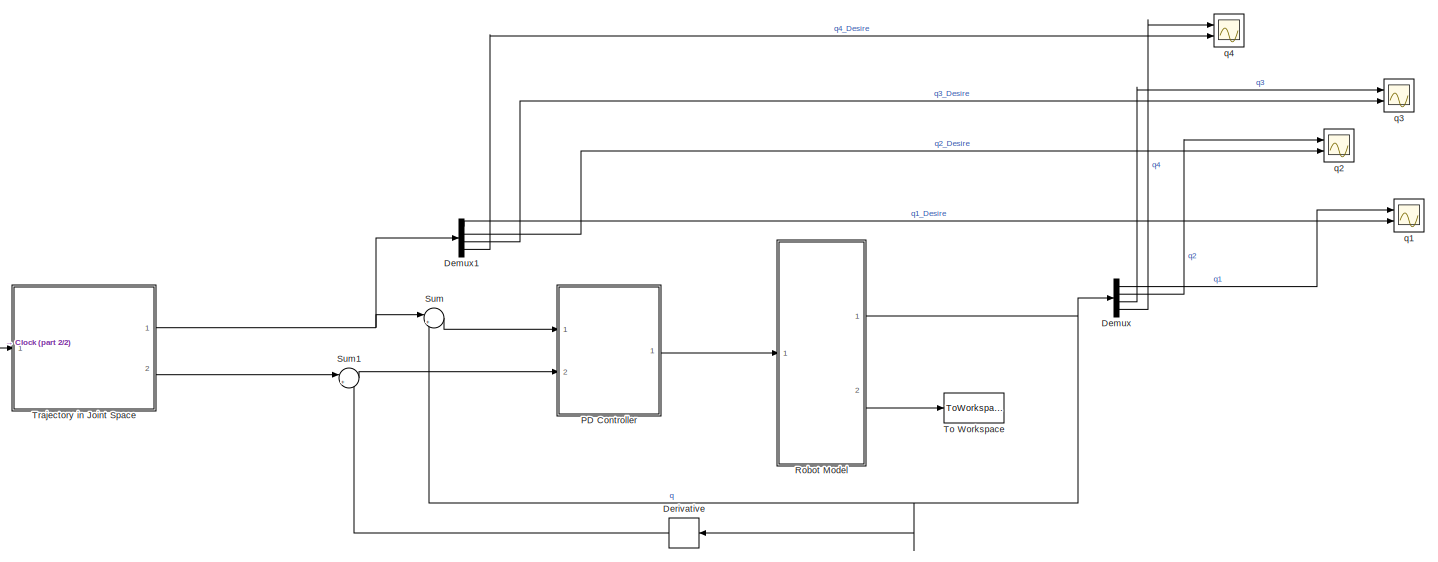
[diagram: root canvas - part 1/2, most of the canvas]
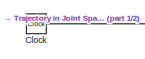
[diagram: root canvas - part 2/2, middle left region]
MODEL slx_ac740639ecaa
KIND model
CONFIG AbsTol = auto
CONFIG EnableMultiTasking = on
CONFIG FixedStep = 0.001
CONFIG MaxStep = 0.01
CONFIG MinStep = auto
CONFIG RelTol = 1e-3
CONFIG SampleTimeConstraint = Unconstrained
CONFIG Solver = VariableStepAuto
CONFIG SolverName = VariableStepAuto
CONFIG StartTime = 0.0
CONFIG StopTime = 1
BLOCK [Clock] Clock
BLOCK [Demux] Demux
  DisplayOption = bar
  Ports = [1, 4]
BLOCK [Demux] Demux1
  DisplayOption = bar
  Ports = [1, 4]
BLOCK [Derivative] Derivative
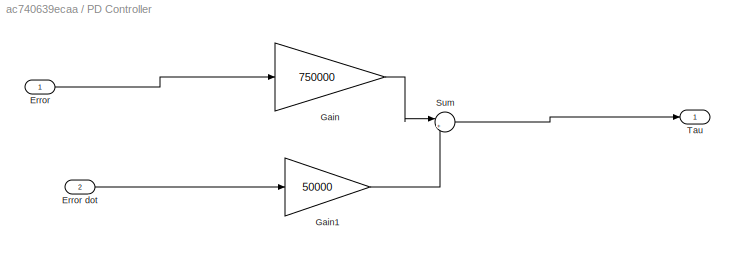
BLOCK [SubSystem] PD Controller
  Ports = [2, 1]
  RequestExecContextInheritance = off
BLOCK [Inport] PD Controller/Error
  IconDisplay = Port number
BLOCK [Inport] PD Controller/Error dot
  IconDisplay = Port number
  Port = 2
BLOCK [Gain] PD Controller/Gain
  Gain = 750000
  OutDataTypeStr = Inherit: Inherit via internal rule
  ParamDataTypeStr = Inherit: Inherit via internal rule
  SaturateOnIntegerOverflow = off
BLOCK [Gain] PD Controller/Gain1
  Gain = 50000
  OutDataTypeStr = Inherit: Inherit via internal rule
  ParamDataTypeStr = Inherit: Inherit via internal rule
  SaturateOnIntegerOverflow = off
BLOCK [Sum] PD Controller/Sum
  IconShape = round
  InputSameDT = off
  Inputs = |++
  OutDataTypeStr = Inherit: Inherit via internal rule
  Ports = [2, 1]
  SaturateOnIntegerOverflow = off
BLOCK [Outport] PD Controller/Tau
  IconDisplay = Port number
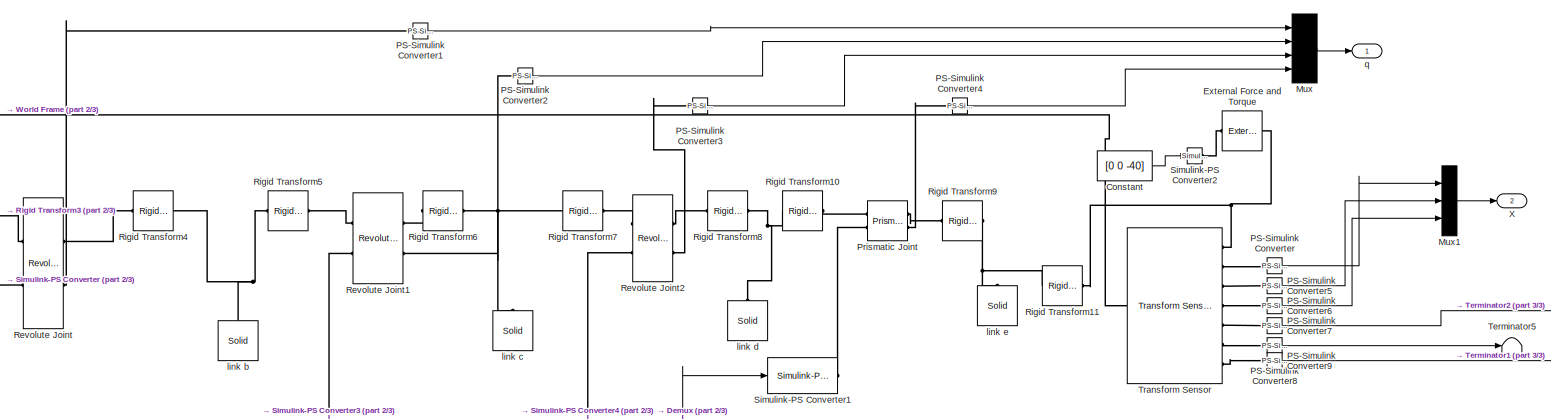
[diagram: Robot Model - part 1/3, central region]
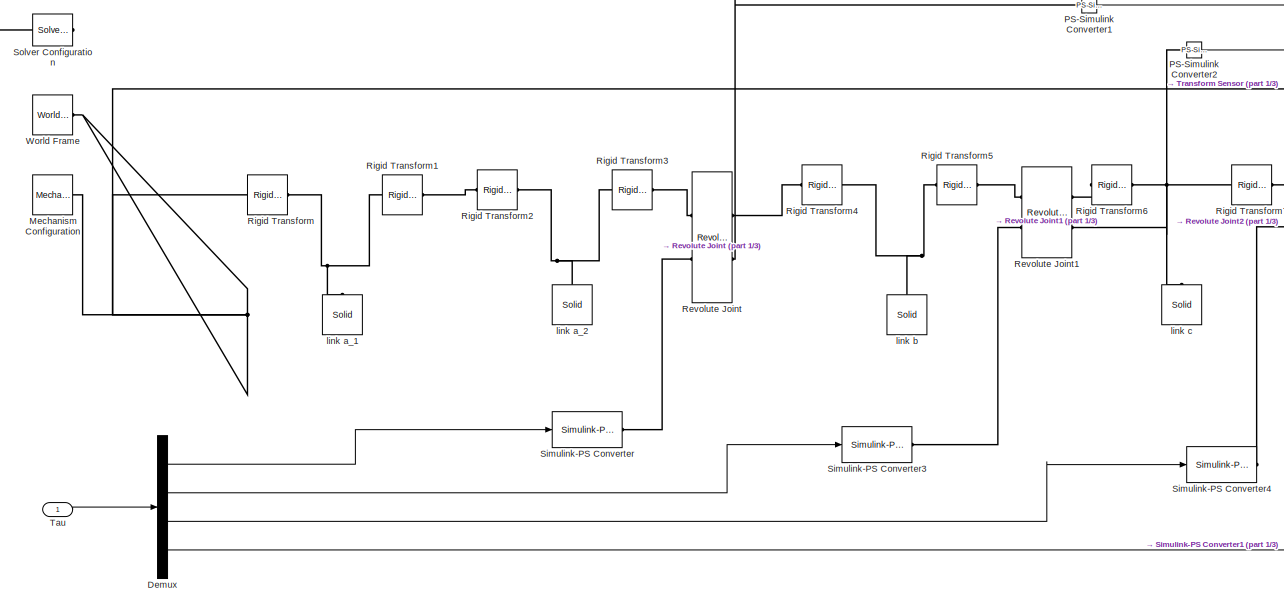
[diagram: Robot Model - part 2/3, left side, full height]
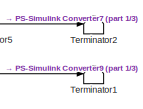
[diagram: Robot Model - part 3/3, middle right region]
BLOCK [SubSystem] Robot Model
  Ports = [1, 2]
  RequestExecContextInheritance = off
BLOCK [Constant] Robot Model/Constant
  Value = [0 0 -40]
BLOCK [Demux] Robot Model/Demux
  DisplayOption = bar
  Ports = [1, 4]
BLOCK [Reference] Robot Model/External Force and Torque  REF=sm_lib/Forces and
Torques/External Force
and Torque
  Ports = [0, 0, 0, 0, 0, 1, 1]
  SourceBlock = sm_lib/Forces and\nTorques/External Force\nand Torque
  SourceProductBaseCode = MS
  SourceProductName = Simscape Multibody
  SourceType = External Force\nand Torque
BLOCK [Reference] Robot Model/Mechanism Configuration  REF=sm_lib/Utilities/Mechanism
Configuration
  Ports = [0, 0, 0, 0, 0, 0, 1]
  SourceBlock = sm_lib/Utilities/Mechanism\nConfiguration
  SourceProductBaseCode = MS
  SourceProductName = Simscape Multibody
  SourceType = Mechanism\nConfiguration
BLOCK [Mux] Robot Model/Mux
  DisplayOption = bar
  Ports = [4, 1]
BLOCK [Mux] Robot Model/Mux1
  DisplayOption = bar
  Inputs = 3
  Ports = [3, 1]
BLOCK [Reference] Robot Model/PS-Simulink Converter  REF=nesl_utility/PS-Simulink
Converter
  Ports = [0, 1, 0, 0, 0, 1]
  SourceBlock = nesl_utility/PS-Simulink\nConverter
  SourceProductBaseCode = SS
  SourceProductName = Simscape
  SourceType = PS-Simulink\nConverter
BLOCK [Reference] Robot Model/PS-Simulink Converter1  REF=nesl_utility/PS-Simulink
Converter
  Ports = [0, 1, 0, 0, 0, 1]
  SourceBlock = nesl_utility/PS-Simulink\nConverter
  SourceProductBaseCode = SS
  SourceProductName = Simscape
  SourceType = PS-Simulink\nConverter
BLOCK [Reference] Robot Model/PS-Simulink Converter2  REF=nesl_utility/PS-Simulink
Converter
  Ports = [0, 1, 0, 0, 0, 1]
  SourceBlock = nesl_utility/PS-Simulink\nConverter
  SourceProductBaseCode = SS
  SourceProductName = Simscape
  SourceType = PS-Simulink\nConverter
BLOCK [Reference] Robot Model/PS-Simulink Converter3  REF=nesl_utility/PS-Simulink
Converter
  Ports = [0, 1, 0, 0, 0, 1]
  SourceBlock = nesl_utility/PS-Simulink\nConverter
  SourceProductBaseCode = SS
  SourceProductName = Simscape
  SourceType = PS-Simulink\nConverter
BLOCK [Reference] Robot Model/PS-Simulink Converter4  REF=nesl_utility/PS-Simulink
Converter
  Ports = [0, 1, 0, 0, 0, 1]
  SourceBlock = nesl_utility/PS-Simulink\nConverter
  SourceProductBaseCode = SS
  SourceProductName = Simscape
  SourceType = PS-Simulink\nConverter
BLOCK [Reference] Robot Model/PS-Simulink Converter5  REF=nesl_utility/PS-Simulink
Converter
  Ports = [0, 1, 0, 0, 0, 1]
  SourceBlock = nesl_utility/PS-Simulink\nConverter
  SourceProductBaseCode = SS
  SourceProductName = Simscape
  SourceType = PS-Simulink\nConverter
BLOCK [Reference] Robot Model/PS-Simulink Converter6  REF=nesl_utility/PS-Simulink
Converter
  Ports = [0, 1, 0, 0, 0, 1]
  SourceBlock = nesl_utility/PS-Simulink\nConverter
  SourceProductBaseCode = SS
  SourceProductName = Simscape
  SourceType = PS-Simulink\nConverter
BLOCK [Reference] Robot Model/PS-Simulink Converter7  REF=nesl_utility/PS-Simulink
Converter
  Ports = [0, 1, 0, 0, 0, 1]
  SourceBlock = nesl_utility/PS-Simulink\nConverter
  SourceProductBaseCode = SS
  SourceProductName = Simscape
  SourceType = PS-Simulink\nConverter
BLOCK [Reference] Robot Model/PS-Simulink Converter8  REF=nesl_utility/PS-Simulink
Converter
  Ports = [0, 1, 0, 0, 0, 1]
  SourceBlock = nesl_utility/PS-Simulink\nConverter
  SourceProductBaseCode = SS
  SourceProductName = Simscape
  SourceType = PS-Simulink\nConverter
BLOCK [Reference] Robot Model/PS-Simulink Converter9  REF=nesl_utility/PS-Simulink
Converter
  Ports = [0, 1, 0, 0, 0, 1]
  SourceBlock = nesl_utility/PS-Simulink\nConverter
  SourceProductBaseCode = SS
  SourceProductName = Simscape
  SourceType = PS-Simulink\nConverter
BLOCK [Reference] Robot Model/Prismatic Joint  REF=sm_lib/Joints/Prismatic
Joint
  Ports = [0, 0, 0, 0, 0, 2, 2]
  SourceBlock = sm_lib/Joints/Prismatic\nJoint
  SourceProductBaseCode = MS
  SourceProductName = Simscape Multibody
  SourceType = Prismatic\nJoint
BLOCK [Reference] Robot Model/Revolute Joint  REF=sm_lib/Joints/Revolute Joint
  Ports = [0, 0, 0, 0, 0, 2, 2]
  SourceBlock = sm_lib/Joints/Revolute Joint
  SourceProductBaseCode = MS
  SourceProductName = Simscape Multibody
  SourceType = Revolute Joint
BLOCK [Reference] Robot Model/Revolute Joint1  REF=sm_lib/Joints/Revolute Joint
  Ports = [0, 0, 0, 0, 0, 2, 2]
  SourceBlock = sm_lib/Joints/Revolute Joint
  SourceProductBaseCode = MS
  SourceProductName = Simscape Multibody
  SourceType = Revolute Joint
BLOCK [Reference] Robot Model/Revolute Joint2  REF=sm_lib/Joints/Revolute Joint
  Ports = [0, 0, 0, 0, 0, 2, 2]
  SourceBlock = sm_lib/Joints/Revolute Joint
  SourceProductBaseCode = MS
  SourceProductName = Simscape Multibody
  SourceType = Revolute Joint
BLOCK [Reference] Robot Model/Rigid Transform  REF=sm_lib/Frames and
Transforms/Rigid
Transform
  Ports = [0, 0, 0, 0, 0, 1, 1]
  SourceBlock = sm_lib/Frames and\nTransforms/Rigid\nTransform
  SourceProductBaseCode = MS
  SourceProductName = Simscape Multibody
  SourceType = Rigid\nTransform
BLOCK [Reference] Robot Model/Rigid Transform1  REF=sm_lib/Frames and
Transforms/Rigid
Transform
  Ports = [0, 0, 0, 0, 0, 1, 1]
  SourceBlock = sm_lib/Frames and\nTransforms/Rigid\nTransform
  SourceProductBaseCode = MS
  SourceProductName = Simscape Multibody
  SourceType = Rigid\nTransform
BLOCK [Reference] Robot Model/Rigid Transform10  REF=sm_lib/Frames and
Transforms/Rigid
Transform
  Ports = [0, 0, 0, 0, 0, 1, 1]
  SourceBlock = sm_lib/Frames and\nTransforms/Rigid\nTransform
  SourceProductBaseCode = MS
  SourceProductName = Simscape Multibody
  SourceType = Rigid\nTransform
BLOCK [Reference] Robot Model/Rigid Transform11  REF=sm_lib/Frames and
Transforms/Rigid
Transform
  Ports = [0, 0, 0, 0, 0, 1, 1]
  SourceBlock = sm_lib/Frames and\nTransforms/Rigid\nTransform
  SourceProductBaseCode = MS
  SourceProductName = Simscape Multibody
  SourceType = Rigid\nTransform
BLOCK [Reference] Robot Model/Rigid Transform2  REF=sm_lib/Frames and
Transforms/Rigid
Transform
  Ports = [0, 0, 0, 0, 0, 1, 1]
  SourceBlock = sm_lib/Frames and\nTransforms/Rigid\nTransform
  SourceProductBaseCode = MS
  SourceProductName = Simscape Multibody
  SourceType = Rigid\nTransform
BLOCK [Reference] Robot Model/Rigid Transform3  REF=sm_lib/Frames and
Transforms/Rigid
Transform
  Ports = [0, 0, 0, 0, 0, 1, 1]
  SourceBlock = sm_lib/Frames and\nTransforms/Rigid\nTransform
  SourceProductBaseCode = MS
  SourceProductName = Simscape Multibody
  SourceType = Rigid\nTransform
BLOCK [Reference] Robot Model/Rigid Transform4  REF=sm_lib/Frames and
Transforms/Rigid
Transform
  Ports = [0, 0, 0, 0, 0, 1, 1]
  SourceBlock = sm_lib/Frames and\nTransforms/Rigid\nTransform
  SourceProductBaseCode = MS
  SourceProductName = Simscape Multibody
  SourceType = Rigid\nTransform
BLOCK [Reference] Robot Model/Rigid Transform5  REF=sm_lib/Frames and
Transforms/Rigid
Transform
  Ports = [0, 0, 0, 0, 0, 1, 1]
  SourceBlock = sm_lib/Frames and\nTransforms/Rigid\nTransform
  SourceProductBaseCode = MS
  SourceProductName = Simscape Multibody
  SourceType = Rigid\nTransform
BLOCK [Reference] Robot Model/Rigid Transform6  REF=sm_lib/Frames and
Transforms/Rigid
Transform
  Ports = [0, 0, 0, 0, 0, 1, 1]
  SourceBlock = sm_lib/Frames and\nTransforms/Rigid\nTransform
  SourceProductBaseCode = MS
  SourceProductName = Simscape Multibody
  SourceType = Rigid\nTransform
BLOCK [Reference] Robot Model/Rigid Transform7  REF=sm_lib/Frames and
Transforms/Rigid
Transform
  Ports = [0, 0, 0, 0, 0, 1, 1]
  SourceBlock = sm_lib/Frames and\nTransforms/Rigid\nTransform
  SourceProductBaseCode = MS
  SourceProductName = Simscape Multibody
  SourceType = Rigid\nTransform
BLOCK [Reference] Robot Model/Rigid Transform8  REF=sm_lib/Frames and
Transforms/Rigid
Transform
  Ports = [0, 0, 0, 0, 0, 1, 1]
  SourceBlock = sm_lib/Frames and\nTransforms/Rigid\nTransform
  SourceProductBaseCode = MS
  SourceProductName = Simscape Multibody
  SourceType = Rigid\nTransform
BLOCK [Reference] Robot Model/Rigid Transform9  REF=sm_lib/Frames and
Transforms/Rigid
Transform
  Ports = [0, 0, 0, 0, 0, 1, 1]
  SourceBlock = sm_lib/Frames and\nTransforms/Rigid\nTransform
  SourceProductBaseCode = MS
  SourceProductName = Simscape Multibody
  SourceType = Rigid\nTransform
BLOCK [Reference] Robot Model/Simulink-PS Converter  REF=nesl_utility/Simulink-PS
Converter
  Ports = [1, 0, 0, 0, 0, 0, 1]
  SourceBlock = nesl_utility/Simulink-PS\nConverter
  SourceProductBaseCode = SS
  SourceProductName = Simscape
  SourceType = Simulink-PS\nConverter
BLOCK [Reference] Robot Model/Simulink-PS Converter1  REF=nesl_utility/Simulink-PS
Converter
  Ports = [1, 0, 0, 0, 0, 0, 1]
  SourceBlock = nesl_utility/Simulink-PS\nConverter
  SourceProductBaseCode = SS
  SourceProductName = Simscape
  SourceType = Simulink-PS\nConverter
BLOCK [Reference] Robot Model/Simulink-PS Converter2  REF=nesl_utility/Simulink-PS
Converter
  Ports = [1, 0, 0, 0, 0, 0, 1]
  SourceBlock = nesl_utility/Simulink-PS\nConverter
  SourceProductBaseCode = SS
  SourceProductName = Simscape
  SourceType = Simulink-PS\nConverter
BLOCK [Reference] Robot Model/Simulink-PS Converter3  REF=nesl_utility/Simulink-PS
Converter
  Ports = [1, 0, 0, 0, 0, 0, 1]
  SourceBlock = nesl_utility/Simulink-PS\nConverter
  SourceProductBaseCode = SS
  SourceProductName = Simscape
  SourceType = Simulink-PS\nConverter
BLOCK [Reference] Robot Model/Simulink-PS Converter4  REF=nesl_utility/Simulink-PS
Converter
  Ports = [1, 0, 0, 0, 0, 0, 1]
  SourceBlock = nesl_utility/Simulink-PS\nConverter
  SourceProductBaseCode = SS
  SourceProductName = Simscape
  SourceType = Simulink-PS\nConverter
BLOCK [Reference] Robot Model/Solver Configuration  REF=nesl_utility/Solver
Configuration
  Ports = [0, 0, 0, 0, 0, 0, 1]
  SourceBlock = nesl_utility/Solver\nConfiguration
  SourceProductBaseCode = SS
  SourceProductName = Simscape
  SourceType = Solver\nConfiguration
BLOCK [Inport] Robot Model/Tau
  IconDisplay = Port number
BLOCK [Terminator] Robot Model/Terminator1
BLOCK [Terminator] Robot Model/Terminator2
BLOCK [Terminator] Robot Model/Terminator5
BLOCK [Reference] Robot Model/Transform Sensor  REF=sm_lib/Frames and
Transforms/Transform
Sensor
  Ports = [0, 0, 0, 0, 0, 1, 7]
  SourceBlock = sm_lib/Frames and\nTransforms/Transform\nSensor
  SourceProductBaseCode = MS
  SourceProductName = Simscape Multibody
  SourceType = Transform\nSensor
BLOCK [Reference] Robot Model/World Frame  REF=sm_lib/Frames and
Transforms/World Frame
  Ports = [0, 0, 0, 0, 0, 0, 1]
  SourceBlock = sm_lib/Frames and\nTransforms/World Frame
  SourceProductBaseCode = MS
  SourceProductName = Simscape Multibody
  SourceType = World Frame
BLOCK [Outport] Robot Model/X
  IconDisplay = Port number
  Port = 2
BLOCK [Reference] Robot Model/link a_1  REF=sm_lib/Body Elements/Solid
  Ports = [0, 0, 0, 0, 0, 0, 1]
  SourceBlock = sm_lib/Body Elements/Solid
  SourceProductBaseCode = MS
  SourceProductName = Simscape Multibody
  SourceType = Solid
BLOCK [Reference] Robot Model/link a_2  REF=sm_lib/Body Elements/Solid
  Ports = [0, 0, 0, 0, 0, 0, 1]
  SourceBlock = sm_lib/Body Elements/Solid
  SourceProductBaseCode = MS
  SourceProductName = Simscape Multibody
  SourceType = Solid
BLOCK [Reference] Robot Model/link b  REF=sm_lib/Body Elements/Solid
  Ports = [0, 0, 0, 0, 0, 0, 1]
  SourceBlock = sm_lib/Body Elements/Solid
  SourceProductBaseCode = MS
  SourceProductName = Simscape Multibody
  SourceType = Solid
BLOCK [Reference] Robot Model/link c  REF=sm_lib/Body Elements/Solid
  Ports = [0, 0, 0, 0, 0, 0, 1]
  SourceBlock = sm_lib/Body Elements/Solid
  SourceProductBaseCode = MS
  SourceProductName = Simscape Multibody
  SourceType = Solid
BLOCK [Reference] Robot Model/link d  REF=sm_lib/Body Elements/Solid
  Ports = [0, 0, 0, 0, 0, 0, 1]
  SourceBlock = sm_lib/Body Elements/Solid
  SourceProductBaseCode = MS
  SourceProductName = Simscape Multibody
  SourceType = Solid
BLOCK [Reference] Robot Model/link e  REF=sm_lib/Body Elements/Solid
  Ports = [0, 0, 0, 0, 0, 0, 1]
  SourceBlock = sm_lib/Body Elements/Solid
  SourceProductBaseCode = MS
  SourceProductName = Simscape Multibody
  SourceType = Solid
BLOCK [Outport] Robot Model/q
  IconDisplay = Port number
BLOCK [Sum] Sum
  IconShape = round
  InputSameDT = off
  Inputs = |+-
  OutDataTypeStr = Inherit: Inherit via internal rule
  Ports = [2, 1]
  SaturateOnIntegerOverflow = off
BLOCK [Sum] Sum1
  IconShape = round
  InputSameDT = off
  Inputs = |+-
  OutDataTypeStr = Inherit: Inherit via internal rule
  Ports = [2, 1]
  SaturateOnIntegerOverflow = off
BLOCK [ToWorkspace] To Workspace
  FixptAsFi = on
  MaxDataPoints = inf
  Ports = [1]
  SampleTime = -1
  Save2DSignal = 2-D array (concatenate along first dimension)
  VariableName = XYZ
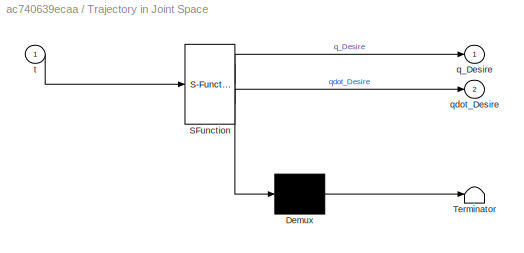
BLOCK [SubSystem] Trajectory in Joint Space
  ErrorFcn = Stateflow.Translate.translate
  PermitHierarchicalResolution = ExplicitOnly
  Ports = [1, 2]
  RequestExecContextInheritance = off
  SFBlockType = MATLAB Function
  TreatAsAtomicUnit = on
BLOCK [Demux] Trajectory in Joint Space/ Demux 
  Outputs = 1
  Ports = [1, 1]
BLOCK [S-Function] Trajectory in Joint Space/ SFunction 
  EnableBusSupport = on
  FunctionName = sf_sfun
  PortCounts = [1 3]
  Ports = [1, 3]
  SFcnIsStateOwnerBlock = off
  SFunctionDeploymentMode = off
  Tag = Stateflow S-Function Final_Simulink 2
BLOCK [Terminator] Trajectory in Joint Space/ Terminator 
BLOCK [Outport] Trajectory in Joint Space/q_Desire
  IconDisplay = Port number
BLOCK [Outport] Trajectory in Joint Space/qdot_Desire
  IconDisplay = Port number
  Port = 2
BLOCK [Inport] Trajectory in Joint Space/t
  IconDisplay = Port number
BLOCK [Scope] q1
  Floating = off
  NumInputPorts = 2
  Ports = [2]
  ScopeSpecificationString = Simulink.scopes.TimeScopeBlockCfg('CurrentConfiguration', extmgr.ConfigurationSet(extmgr.Configuration('Core','General UI',true,'FigureColor',[1 1 1]),extmgr.Configuration('Core','Source UI',true),extmgr.Configuration('Sources','WiredSimulink',true),extmgr.Configuration('Visuals','Time Domain',true,'SerializedDisplays',{struct('MinYLimReal','-0.06545','MaxYLimReal','0.58905','YLabelReal','','MinYL...<+1779ch>
BLOCK [Scope] q2
  Floating = off
  NumInputPorts = 2
  Ports = [2]
  ScopeSpecificationString = Simulink.scopes.TimeScopeBlockCfg('CurrentConfiguration', extmgr.ConfigurationSet(extmgr.Configuration('Core','General UI',true,'FigureColor',[1 1 1]),extmgr.Configuration('Core','Source UI',true),extmgr.Configuration('Sources','WiredSimulink',true,'DataLoggingVariableName','ScopeData1'),extmgr.Configuration('Visuals','Time Domain',true,'SerializedDisplays',{struct('MinYLimReal','-0.06783','MaxYLi...<+1818ch>
BLOCK [Scope] q3
  Floating = off
  NumInputPorts = 2
  Ports = [2]
  ScopeSpecificationString = Simulink.scopes.TimeScopeBlockCfg('CurrentConfiguration', extmgr.ConfigurationSet(extmgr.Configuration('Core','General UI',true,'FigureColor',[1 1 1]),extmgr.Configuration('Core','Source UI',true),extmgr.Configuration('Sources','WiredSimulink',true,'DataLoggingVariableName','ScopeData2'),extmgr.Configuration('Visuals','Time Domain',true,'SerializedDisplays',{struct('MinYLimReal','-0.06587','MaxYLi...<+1818ch>
BLOCK [Scope] q4
  Floating = off
  NumInputPorts = 2
  Ports = [2]
  ScopeSpecificationString = Simulink.scopes.TimeScopeBlockCfg('CurrentConfiguration', extmgr.ConfigurationSet(extmgr.Configuration('Core','General UI',true,'FigureColor',[1 1 1]),extmgr.Configuration('Core','Source UI',true),extmgr.Configuration('Sources','WiredSimulink',true,'DataLoggingVariableName','ScopeData3'),extmgr.Configuration('Visuals','Time Domain',true,'SerializedDisplays',{struct('MinYLimReal','-0.0125','MaxYLim...<+1812ch>
LINE Clock:1 -> Trajectory in Joint Space:1
LINE Demux1:1 -> q1:2
LINE Demux1:2 -> q2:2
LINE Demux1:3 -> q3:2
LINE Demux1:4 -> q4:2
LINE Demux:1 -> q1:1
LINE Demux:2 -> q2:1
LINE Demux:3 -> q3:1
LINE Demux:4 -> q4:1
LINE Derivative:1 -> Sum1:2
LINE PD Controller/Error dot:1 -> PD Controller/Gain1:1
LINE PD Controller/Error:1 -> PD Controller/Gain:1
LINE PD Controller/Gain1:1 -> PD Controller/Sum:2
LINE PD Controller/Gain:1 -> PD Controller/Sum:1
LINE PD Controller/Sum:1 -> PD Controller/Tau:1
LINE PD Controller:1 -> Robot Model:1
LINE Robot Model/Constant:1 -> Robot Model/Simulink-PS Converter2:1
LINE Robot Model/Demux:1 -> Robot Model/Simulink-PS Converter:1
LINE Robot Model/Demux:2 -> Robot Model/Simulink-PS Converter3:1
LINE Robot Model/Demux:3 -> Robot Model/Simulink-PS Converter4:1
LINE Robot Model/Demux:4 -> Robot Model/Simulink-PS Converter1:1
LINE Robot Model/Mux1:1 -> Robot Model/X:1
LINE Robot Model/Mux:1 -> Robot Model/q:1
LINE Robot Model/PS-Simulink Converter1:1 -> Robot Model/Mux:1
LINE Robot Model/PS-Simulink Converter2:1 -> Robot Model/Mux:2
LINE Robot Model/PS-Simulink Converter3:1 -> Robot Model/Mux:3
LINE Robot Model/PS-Simulink Converter4:1 -> Robot Model/Mux:4
LINE Robot Model/PS-Simulink Converter5:1 -> Robot Model/Mux1:2
LINE Robot Model/PS-Simulink Converter6:1 -> Robot Model/Mux1:3
LINE Robot Model/PS-Simulink Converter7:1 -> Robot Model/Terminator2:1
LINE Robot Model/PS-Simulink Converter8:1 -> Robot Model/Terminator5:1
LINE Robot Model/PS-Simulink Converter9:1 -> Robot Model/Terminator1:1
LINE Robot Model/PS-Simulink Converter:1 -> Robot Model/Mux1:1
LINE Robot Model/Tau:1 -> Robot Model/Demux:1
NET Robot Model:1 -> Demux:1, Derivative:1, Sum:2
LINE Robot Model:2 -> To Workspace:1
LINE Sum1:1 -> PD Controller:2
LINE Sum:1 -> PD Controller:1
NET Trajectory in Joint Space:1 -> Demux1:1, Sum:1
LINE Trajectory in Joint Space:2 -> Sum1:1
PLINE Robot Model/External Force and Torque:LConn1 -- Robot Model/Simulink-PS Converter2:RConn1
PNET net1: Robot Model/External Force and Torque:RConn1 -- Robot Model/Rigid Transform11:RConn1 -- Robot Model/Transform Sensor:RConn1
PNET net2: Robot Model/Mechanism Configuration:RConn1 -- Robot Model/Rigid Transform:RConn1 -- Robot Model/Solver Configuration:RConn1 -- Robot Model/Transform Sensor:LConn1 -- Robot Model/World Frame:RConn1
PLINE Robot Model/PS-Simulink Converter1:LConn1 -- Robot Model/Revolute Joint:RConn2
PLINE Robot Model/PS-Simulink Converter2:LConn1 -- Robot Model/Revolute Joint1:RConn2
PLINE Robot Model/PS-Simulink Converter3:LConn1 -- Robot Model/Revolute Joint2:RConn2
PLINE Robot Model/PS-Simulink Converter4:LConn1 -- Robot Model/Prismatic Joint:RConn2
PLINE Robot Model/PS-Simulink Converter5:LConn1 -- Robot Model/Transform Sensor:RConn3
PLINE Robot Model/PS-Simulink Converter6:LConn1 -- Robot Model/Transform Sensor:RConn4
PLINE Robot Model/PS-Simulink Converter7:LConn1 -- Robot Model/Transform Sensor:RConn5
PLINE Robot Model/PS-Simulink Converter8:LConn1 -- Robot Model/Transform Sensor:RConn6
PLINE Robot Model/PS-Simulink Converter9:LConn1 -- Robot Model/Transform Sensor:RConn7
PLINE Robot Model/PS-Simulink Converter:LConn1 -- Robot Model/Transform Sensor:RConn2
PLINE Robot Model/Prismatic Joint:LConn1 -- Robot Model/Rigid Transform10:RConn1
PLINE Robot Model/Prismatic Joint:LConn2 -- Robot Model/Simulink-PS Converter1:RConn1
PLINE Robot Model/Prismatic Joint:RConn1 -- Robot Model/Rigid Transform9:RConn1
PLINE Robot Model/Revolute Joint1:LConn1 -- Robot Model/Rigid Transform5:RConn1
PLINE Robot Model/Revolute Joint1:LConn2 -- Robot Model/Simulink-PS Converter3:RConn1
PLINE Robot Model/Revolute Joint1:RConn1 -- Robot Model/Rigid Transform6:RConn1
PLINE Robot Model/Revolute Joint2:LConn1 -- Robot Model/Rigid Transform7:RConn1
PLINE Robot Model/Revolute Joint2:LConn2 -- Robot Model/Simulink-PS Converter4:RConn1
PLINE Robot Model/Revolute Joint2:RConn1 -- Robot Model/Rigid Transform8:RConn1
PLINE Robot Model/Revolute Joint:LConn1 -- Robot Model/Rigid Transform3:RConn1
PLINE Robot Model/Revolute Joint:LConn2 -- Robot Model/Simulink-PS Converter:RConn1
PLINE Robot Model/Revolute Joint:RConn1 -- Robot Model/Rigid Transform4:RConn1
PNET net3: Robot Model/Rigid Transform10:LConn1 -- Robot Model/Rigid Transform8:LConn1 -- Robot Model/link d:RConn1
PNET net4: Robot Model/Rigid Transform11:LConn1 -- Robot Model/Rigid Transform9:LConn1 -- Robot Model/link e:RConn1
PNET net5: Robot Model/Rigid Transform1:LConn1 -- Robot Model/Rigid Transform:LConn1 -- Robot Model/link a_1:RConn1
PLINE Robot Model/Rigid Transform1:RConn1 -- Robot Model/Rigid Transform2:RConn1
PNET net6: Robot Model/Rigid Transform2:LConn1 -- Robot Model/Rigid Transform3:LConn1 -- Robot Model/link a_2:RConn1
PNET net7: Robot Model/Rigid Transform4:LConn1 -- Robot Model/Rigid Transform5:LConn1 -- Robot Model/link b:RConn1
PNET net8: Robot Model/Rigid Transform6:LConn1 -- Robot Model/Rigid Transform7:LConn1 -- Robot Model/link c:RConn1
note: NET lines group one-source signal fan-out (src -> all destinations, sorted); 1:1 wires keep LINE; PNET lines group multi-terminal physical nets as a canonical sorted terminal list (undirected conserving connections); 2-terminal nets keep the pairwise PLINE form
CHART Trajectory in Joint Space states=1 transitions=1
  STATE_LABEL 'eML_blk_kernel()'
  STATE_LABEL 'SCRIPT:\nfunction [q_Desire,qdot_Desire]=trajectory(t)\n\n\nq1=120*t^5-300*t^4+200*t^3+10;\nq2=q1;\nq3=q1;\nq4=60*t^5-150*t^4+100*t^3;\n\n\ndq1=600*t^4-1200*t^3+600*t^2;\ndq2=dq1;\ndq3=dq1;\n\ndq4=300*t^4-600*t^3+300*t^2;\n\nq_Desire=[q1*(pi/180);q2*(pi/180);q3*(pi/180);q4/100];\nqdot_Desire=[dq1*(pi/180);dq2*(pi/180);dq3*(pi/180);dq4/100];\n\n\nend'
